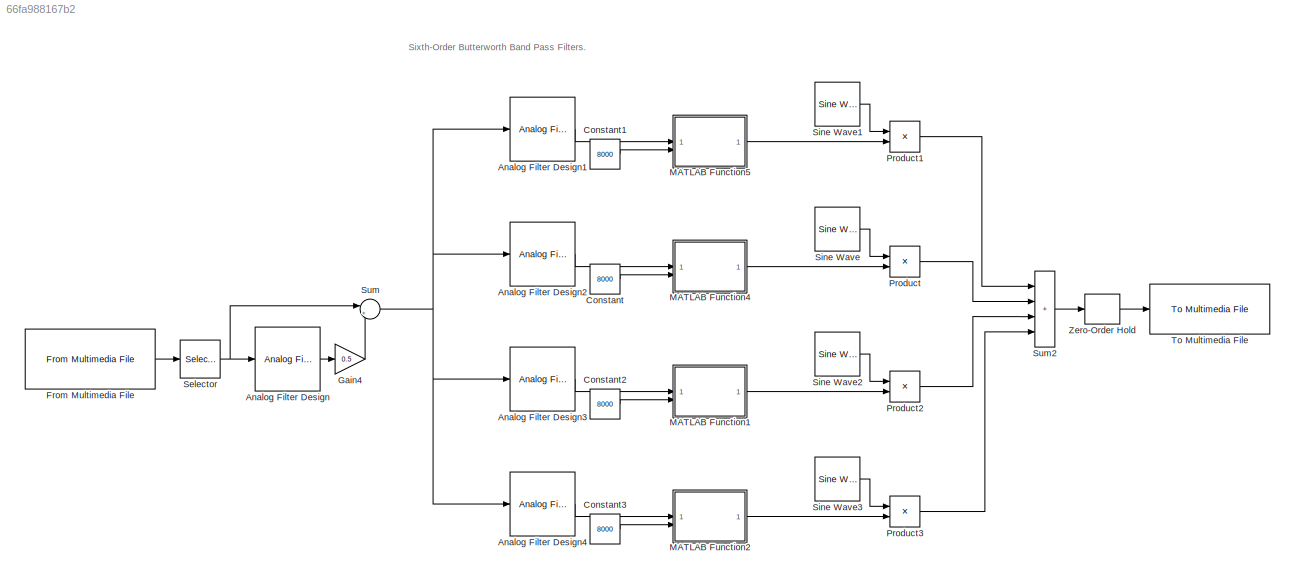
MODEL slx_66fa988167b2
KIND model
CONFIG AbsTol = auto
CONFIG EnableMultiTasking = off
CONFIG FixedStep = auto
CONFIG MaxStep = auto
CONFIG MinStep = auto
CONFIG RelTol = 1e-3
CONFIG SampleTimeConstraint = Unconstrained
CONFIG SolverName = ode23tb
CONFIG StartTime = 0.0
CONFIG StopTime = 3
BLOCK [Reference] Analog Filter Design  REF=dspfdesign/Analog
Filter Design
  SourceBlock = dspfdesign/Analog\nFilter Design
  SourceType = Analog Filter Design
BLOCK [Reference] Analog Filter Design1  REF=dspfdesign/Analog
Filter Design
  SourceBlock = dspfdesign/Analog\nFilter Design
  SourceType = Analog Filter Design
BLOCK [Reference] Analog Filter Design2  REF=dspfdesign/Analog
Filter Design
  SourceBlock = dspfdesign/Analog\nFilter Design
  SourceType = Analog Filter Design
BLOCK [Reference] Analog Filter Design3  REF=dspfdesign/Analog
Filter Design
  SourceBlock = dspfdesign/Analog\nFilter Design
  SourceType = Analog Filter Design
BLOCK [Reference] Analog Filter Design4  REF=dspfdesign/Analog
Filter Design
  SourceBlock = dspfdesign/Analog\nFilter Design
  SourceType = Analog Filter Design
BLOCK [Constant] Constant
  Value = 8000
BLOCK [Constant] Constant1
  Value = 8000
BLOCK [Constant] Constant2
  Value = 8000
BLOCK [Constant] Constant3
  Value = 8000
BLOCK [Reference] From Multimedia File  REF=dspvision/From Multimedia File
  LibrarySourceBlock = dspsrcs4/From Multimedia File
  SourceBlock = dspvision/From Multimedia File
  SourceType = From Multimedia File
BLOCK [Gain] Gain4
  Gain = 0.5
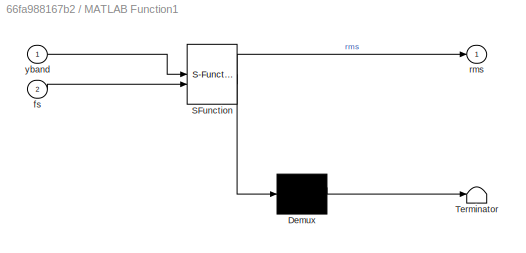
BLOCK [SubSystem] MATLAB Function1
  ErrorFcn = Stateflow.Translate.translate
  PermitHierarchicalResolution = ExplicitOnly
  SFBlockType = MATLAB Function
  TreatAsAtomicUnit = on
BLOCK [Demux] MATLAB Function1/ Demux 
  Outputs = 1
BLOCK [S-Function] MATLAB Function1/ SFunction 
  EnableBusSupport = on
  FunctionName = sf_sfun
  PortCounts = [2 2]
  SFcnIsStateOwnerBlock = off
  SFunctionDeploymentMode = off
  Tag = Stateflow S-Function 1
BLOCK [Terminator] MATLAB Function1/ Terminator 
BLOCK [Inport] MATLAB Function1/fs
  Port = 2
BLOCK [Outport] MATLAB Function1/rms
BLOCK [Inport] MATLAB Function1/yband
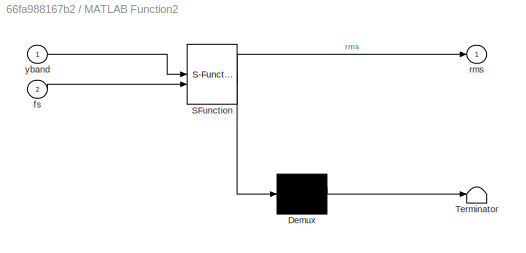
BLOCK [SubSystem] MATLAB Function2
  ErrorFcn = Stateflow.Translate.translate
  PermitHierarchicalResolution = ExplicitOnly
  SFBlockType = MATLAB Function
  TreatAsAtomicUnit = on
BLOCK [Demux] MATLAB Function2/ Demux 
  Outputs = 1
BLOCK [S-Function] MATLAB Function2/ SFunction 
  EnableBusSupport = on
  FunctionName = sf_sfun
  PortCounts = [2 2]
  SFcnIsStateOwnerBlock = off
  SFunctionDeploymentMode = off
  Tag = Stateflow S-Function 2
BLOCK [Terminator] MATLAB Function2/ Terminator 
BLOCK [Inport] MATLAB Function2/fs
  Port = 2
BLOCK [Outport] MATLAB Function2/rms
BLOCK [Inport] MATLAB Function2/yband
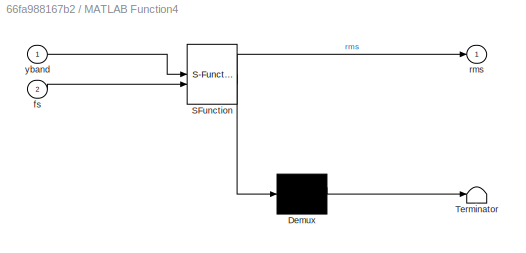
BLOCK [SubSystem] MATLAB Function4
  ErrorFcn = Stateflow.Translate.translate
  PermitHierarchicalResolution = ExplicitOnly
  SFBlockType = MATLAB Function
  TreatAsAtomicUnit = on
BLOCK [Demux] MATLAB Function4/ Demux 
  Outputs = 1
BLOCK [S-Function] MATLAB Function4/ SFunction 
  EnableBusSupport = on
  FunctionName = sf_sfun
  PortCounts = [2 2]
  SFcnIsStateOwnerBlock = off
  SFunctionDeploymentMode = off
  Tag = Stateflow S-Function 5
BLOCK [Terminator] MATLAB Function4/ Terminator 
BLOCK [Inport] MATLAB Function4/fs
  Port = 2
BLOCK [Outport] MATLAB Function4/rms
BLOCK [Inport] MATLAB Function4/yband
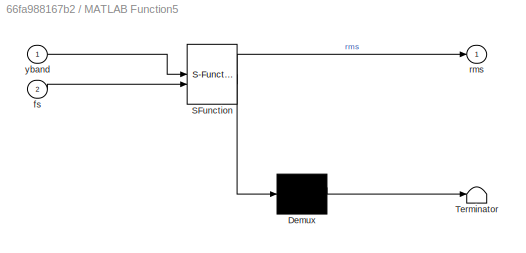
BLOCK [SubSystem] MATLAB Function5
  ErrorFcn = Stateflow.Translate.translate
  PermitHierarchicalResolution = ExplicitOnly
  SFBlockType = MATLAB Function
  TreatAsAtomicUnit = on
BLOCK [Demux] MATLAB Function5/ Demux 
  Outputs = 1
BLOCK [S-Function] MATLAB Function5/ SFunction 
  EnableBusSupport = on
  FunctionName = sf_sfun
  PortCounts = [2 2]
  SFcnIsStateOwnerBlock = off
  SFunctionDeploymentMode = off
  Tag = Stateflow S-Function 6
BLOCK [Terminator] MATLAB Function5/ Terminator 
BLOCK [Inport] MATLAB Function5/fs
  Port = 2
BLOCK [Outport] MATLAB Function5/rms
BLOCK [Inport] MATLAB Function5/yband
BLOCK [Product] Product
BLOCK [Product] Product1
BLOCK [Product] Product2
BLOCK [Product] Product3
BLOCK [Selector] Selector
  IndexOptions = Select all,Index vector (dialog)
  Indices = [2],1
  InputPortWidth = 3
  NumberOfDimensions = 2
  OutputSizes = 1,1
BLOCK [Reference] Sine Wave  REF=dspsrcs4/Sine Wave
  SourceBlock = dspsrcs4/Sine Wave
  SourceType = Sine Wave
BLOCK [Reference] Sine Wave1  REF=dspsrcs4/Sine Wave
  SourceBlock = dspsrcs4/Sine Wave
  SourceType = Sine Wave
BLOCK [Reference] Sine Wave2  REF=dspsrcs4/Sine Wave
  SourceBlock = dspsrcs4/Sine Wave
  SourceType = Sine Wave
BLOCK [Reference] Sine Wave3  REF=dspsrcs4/Sine Wave
  SourceBlock = dspsrcs4/Sine Wave
  SourceType = Sine Wave
BLOCK [Sum] Sum
  Inputs = |++
BLOCK [Sum] Sum2
  IconShape = rectangular
  Inputs = ++++
BLOCK [Reference] To Multimedia File  REF=dspvision/To Multimedia File
  LibrarySourceBlock = dspsnks4/To Multimedia File
  SourceBlock = dspvision/To Multimedia File
  SourceType = To Multimedia File
BLOCK [ZeroOrderHold] Zero-Order Hold
  SampleTime = -1
ANNOTATION (root): Sixth-Order Butterworth Band Pass Filters.
LINE Analog Filter Design1:1 -> MATLAB Function5:1
LINE Analog Filter Design2:1 -> MATLAB Function4:1
LINE Analog Filter Design3:1 -> MATLAB Function1:1
LINE Analog Filter Design4:1 -> MATLAB Function2:1
LINE Analog Filter Design:1 -> Gain4:1
LINE Constant1:1 -> MATLAB Function5:2
LINE Constant2:1 -> MATLAB Function1:2
LINE Constant3:1 -> MATLAB Function2:2
LINE Constant:1 -> MATLAB Function4:2
LINE From Multimedia File:1 -> Selector:1
LINE Gain4:1 -> Sum:2
LINE MATLAB Function1:1 -> Product2:2
LINE MATLAB Function2:1 -> Product3:2
LINE MATLAB Function4:1 -> Product:2
LINE MATLAB Function5:1 -> Product1:2
LINE Product1:1 -> Sum2:1
LINE Product2:1 -> Sum2:3
LINE Product3:1 -> Sum2:4
LINE Product:1 -> Sum2:2
NET Selector:1 -> Analog Filter Design:1, Sum:1
LINE Sine Wave1:1 -> Product1:1
LINE Sine Wave2:1 -> Product2:1
LINE Sine Wave3:1 -> Product3:1
LINE Sine Wave:1 -> Product:1
LINE Sum2:1 -> Zero-Order Hold:1
NET Sum:1 -> Analog Filter Design1:1, Analog Filter Design2:1, Analog Filter Design3:1, Analog Filter Design4:1
LINE Zero-Order Hold:1 -> To Multimedia File:1
note: NET lines group one-source signal fan-out (src -> all destinations, sorted); 1:1 wires keep LINE
CHART MATLAB Function2 states=1 transitions=1
  STATE_LABEL 'eML_blk_kernel()'
  STATE_LABEL "SCRIPT:\nfunction rms = getrms(yband,fs)\n\n    y = abs(yband); %rectifying it makes it sound bad\n\n    [b,a] = butter(2,400/(fs/2));\n\n    z = filter(b,a,y); %this filter also makes it sound bad\n\n    windowsize = round(4/(1000/fs)); %rms computed every 4ms = windowsize samples\n\n    [yupper,ylower] = envelope(yband,windowsize,'rms'); %changed to yband here\n\n    %envelope(z,windowsize,'rms');\n\n    rms =...<+12ch>"  <repeated x3 — deduplicated; at blocks: MATLAB Function2, MATLAB Function4, MATLAB Function1>
CHART MATLAB Function4 states=1 transitions=1
  STATE_LABEL 'eML_blk_kernel()'
CHART MATLAB Function5 states=1 transitions=1
  STATE_LABEL 'eML_blk_kernel()'
  STATE_LABEL "SCRIPT:\nfunction rms = getrms(yband,fs)\n\n    %y = abs(yband); %rectifying it makes it sound bad\n\n    [b,a] = butter(2,400/(fs/2));\n\n    %z = filter(b,a,y); %this filter also makes it sound bad\n\n    windowsize = round(4/(1000/fs)); %rms computed every 4ms = windowsize samples\n\n    [yupper,ylower] = envelope(yband,windowsize,'rms'); %changed to yband here\n\n    %[yupper,ylower] = envelope(z,windowsiz...<+32ch>"
CHART MATLAB Function1 states=1 transitions=1
  STATE_LABEL 'eML_blk_kernel()'
CHART  states=0 transitions=0
CHART  states=0 transitions=0
CHART  states=0 transitions=0
CHART  states=0 transitions=0
